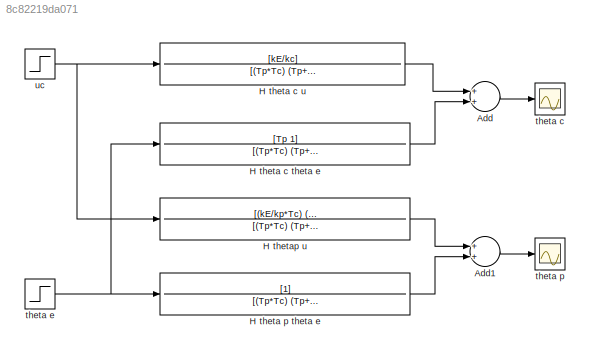
MODEL slx_8c82219da071
KIND model
CONFIG AbsTol = auto
CONFIG EnableMultiTasking = off
CONFIG FixedStep = auto
CONFIG MaxStep = auto
CONFIG MinStep = auto
CONFIG RelTol = 1e-3
CONFIG SampleTimeConstraint = Unconstrained
CONFIG Solver = VariableStepAuto
CONFIG SolverName = VariableStepAuto
CONFIG StartTime = 0.0
CONFIG StopTime = 12000
BLOCK [Sum] Add
  InputSameDT = off
  OutDataTypeStr = Inherit: Inherit via internal rule
  Ports = [2, 1]
  SaturateOnIntegerOverflow = off
BLOCK [Sum] Add1
  InputSameDT = off
  OutDataTypeStr = Inherit: Inherit via internal rule
  Ports = [2, 1]
  SaturateOnIntegerOverflow = off
BLOCK [TransferFcn] H theta c theta e
  Denominator = [(Tp*Tc) (Tp+Tc+Tp*kp/kc) 1]
  Numerator = [Tp 1]
BLOCK [TransferFcn] H theta c u
  Denominator = [(Tp*Tc) (Tp+Tc+Tp*kp/kc)  1]
  Numerator = [kE/kc]
BLOCK [TransferFcn] H theta p theta e
  Denominator = [(Tp*Tc) (Tp+Tc+Tp*kp/kc) 1]
BLOCK [TransferFcn] H thetap u
  Denominator = [(Tp*Tc) (Tp+Tc+Tp*kp/kc) 1]
  Numerator = [(kE/kp*Tc) (kE/kp)*(1+kp/kc)]
BLOCK [Scope] theta c
  Floating = off
  NumInputPorts = 1
  Ports = [1]
  ScopeSpecificationString = Simulink.scopes.TimeScopeBlockCfg('CurrentConfiguration', extmgr.ConfigurationSet(extmgr.Configuration('Core','General UI',true),extmgr.Configuration('Core','Source UI',true),extmgr.Configuration('Sources','WiredSimulink',true),extmgr.Configuration('Visuals','Time Domain',true,'SerializedDisplays',{struct('MinYLimReal','-2.49957','MaxYLimReal','22.49612','YLabelReal','','MinYLimMag','0.00000','Max...<+1327ch>
BLOCK [Step] theta e
  After = -10
  SampleTime = 0
  Time = 5000
BLOCK [Scope] theta p
  Floating = off
  NumInputPorts = 1
  Ports = [1]
  ScopeSpecificationString = Simulink.scopes.TimeScopeBlockCfg('CurrentConfiguration', extmgr.ConfigurationSet(extmgr.Configuration('Core','General UI',true),extmgr.Configuration('Core','Source UI',true),extmgr.Configuration('Sources','WiredSimulink',true,'DataLoggingVariableName','ScopeData1'),extmgr.Configuration('Visuals','Time Domain',true,'SerializedDisplays',{struct('MinYLimReal','-3.12459','MaxYLimReal','28.12129','YLa...<+1367ch>
BLOCK [Step] uc
  After = 2.5
  SampleTime = 0
  Time = 0
LINE Add1:1 -> theta p:1
LINE Add:1 -> theta c:1
LINE H theta c theta e:1 -> Add:2
LINE H theta c u:1 -> Add:1
LINE H theta p theta e:1 -> Add1:2
LINE H thetap u:1 -> Add1:1
NET theta e:1 -> H theta c theta e:1, H theta p theta e:1
NET uc:1 -> H theta c u:1, H thetap u:1
note: NET lines group one-source signal fan-out (src -> all destinations, sorted); 1:1 wires keep LINE
